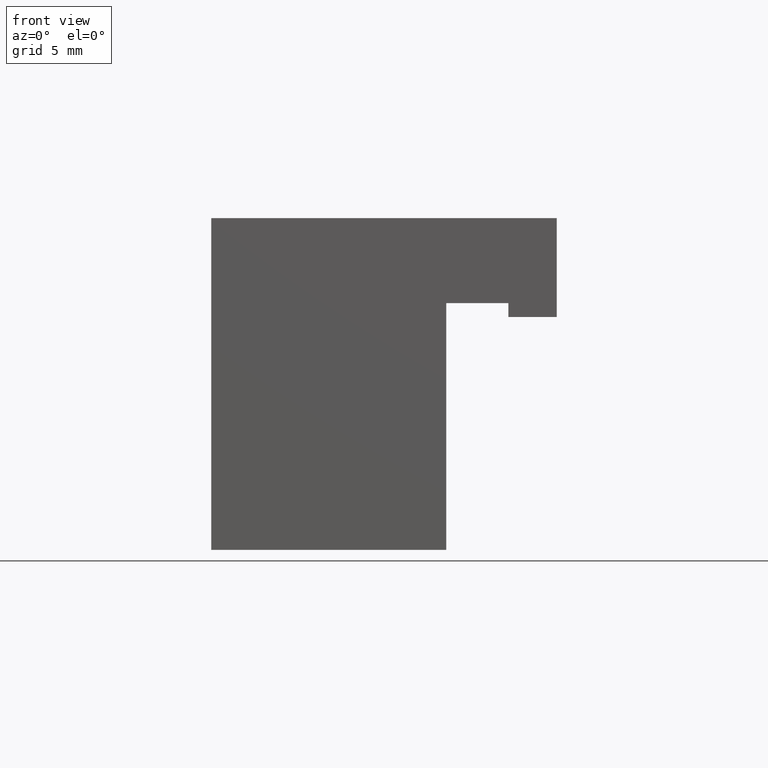
[diagram: clean part render]
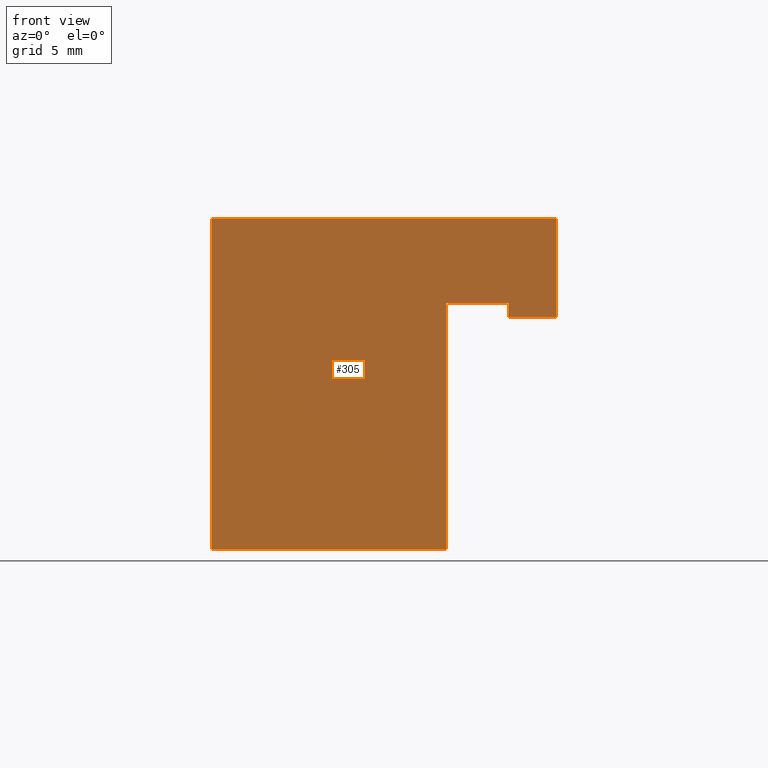
[diagram: same view with one face highlighted and labeled with its STEP entity id]
A machine part, front view. The second image highlights one B-rep face of the part: STEP entity #305.
In plain terms, the highlighted planar face has unit normal (0, -1, 0).
Its self-contained STEP definition (entity closure, byte-faithful):
#7=CARTESIAN_POINT('',(8.499999999967258,-19.999999999919964,1.224647E-015));
#8=VERTEX_POINT('',#7);
#25=CARTESIAN_POINT('',(8.499999999967258,-19.999999999919964,17.849999846508581));
#26=VERTEX_POINT('',#25);
#33=CARTESIAN_POINT('',(8.499999999967258,-19.999999999919964,0.0));
#34=DIRECTION('',(0.0,0.0,1.0));
#35=VECTOR('',#34,17.849999846508581);
#36=LINE('',#33,#35);
#37=EDGE_CURVE('',#8,#26,#36,.T.);
#56=CARTESIAN_POINT('',(12.999999999949068,-19.999999999919964,17.849999846508581));
#57=VERTEX_POINT('',#56);
#64=CARTESIAN_POINT('',(8.499999999967258,-19.999999999919964,17.849999846508581));
#65=DIRECTION('',(1.0,0.0,0.0));
#66=VECTOR('',#65,4.499999999981810);
#67=LINE('',#64,#66);
#68=EDGE_CURVE('',#26,#57,#67,.T.);
#87=CARTESIAN_POINT('',(12.999999999949068,-19.999999999919964,16.849999720166124));
#88=VERTEX_POINT('',#87);
#95=CARTESIAN_POINT('',(12.999999999949068,-19.999999999919964,17.849999846508581));
#96=DIRECTION('',(0.0,0.0,-1.0));
#97=VECTOR('',#96,1.000000126342457);
#98=LINE('',#95,#97);
#99=EDGE_CURVE('',#57,#88,#98,.T.);
#118=CARTESIAN_POINT('',(16.499999999934516,-19.999999999919964,16.849999720166124));
#119=VERTEX_POINT('',#118);
#126=CARTESIAN_POINT('',(12.999999999949068,-19.999999999919964,16.849999720166124));
#127=DIRECTION('',(1.0,0.0,0.0));
#128=VECTOR('',#127,3.499999999985448);
#129=LINE('',#126,#128);
#130=EDGE_CURVE('',#88,#119,#129,.T.);
#149=CARTESIAN_POINT('',(16.499999999934516,-19.999999999919964,23.999999625544660));
#150=VERTEX_POINT('',#149);
#157=CARTESIAN_POINT('',(16.499999999934516,-19.999999999919964,16.849999720166124));
#158=DIRECTION('',(0.0,0.0,1.0));
#159=VECTOR('',#158,7.149999905378536);
#160=LINE('',#157,#159);
#161=EDGE_CURVE('',#119,#150,#160,.T.);
#180=CARTESIAN_POINT('',(-8.499999999967258,-19.999999999919964,23.999999625544660));
#181=VERTEX_POINT('',#180);
#188=CARTESIAN_POINT('',(16.499999999934516,-19.999999999919964,23.999999625544660));
#189=DIRECTION('',(-1.0,0.0,0.0));
#190=VECTOR('',#189,24.999999999901775);
#191=LINE('',#188,#190);
#192=EDGE_CURVE('',#150,#181,#191,.T.);
#231=CARTESIAN_POINT('',(-8.499999999963620,-19.999999999919964,1.224647E-015));
#232=VERTEX_POINT('',#231);
#239=CARTESIAN_POINT('',(-8.499999999967258,-19.999999999919964,23.999999625544660));
#240=DIRECTION('',(0.0,0.0,-1.0));
#241=VECTOR('',#240,23.999999625544660);
#242=LINE('',#239,#241);
#243=EDGE_CURVE('',#181,#232,#242,.T.);
#253=CARTESIAN_POINT('',(-8.499999999963620,-19.999999999919964,1.224647E-015));
#254=DIRECTION('',(1.0,0.0,0.0));
#255=VECTOR('',#254,16.999999999930878);
#256=LINE('',#253,#255);
#257=EDGE_CURVE('',#232,#8,#256,.T.);
#290=CARTESIAN_POINT('',(-11.000004773675755,-19.999999999919964,-2.400004736280606));
#291=DIRECTION('',(0.0,-1.0,0.0));
#292=DIRECTION('',(1.0,0.0,0.0));
#293=AXIS2_PLACEMENT_3D('',#290,#291,#292);
#294=PLANE('',#293);
#295=ORIENTED_EDGE('',*,*,#37,.T.);
#296=ORIENTED_EDGE('',*,*,#68,.T.);
#297=ORIENTED_EDGE('',*,*,#99,.T.);
#298=ORIENTED_EDGE('',*,*,#130,.T.);
#299=ORIENTED_EDGE('',*,*,#161,.T.);
#300=ORIENTED_EDGE('',*,*,#192,.T.);
#301=ORIENTED_EDGE('',*,*,#243,.T.);
#302=ORIENTED_EDGE('',*,*,#257,.T.);
#303=EDGE_LOOP('',(#295,#296,#297,#298,#299,#300,#301,#302));
#304=FACE_OUTER_BOUND('',#303,.T.);
#305=ADVANCED_FACE('',(#304),#294,.T.);